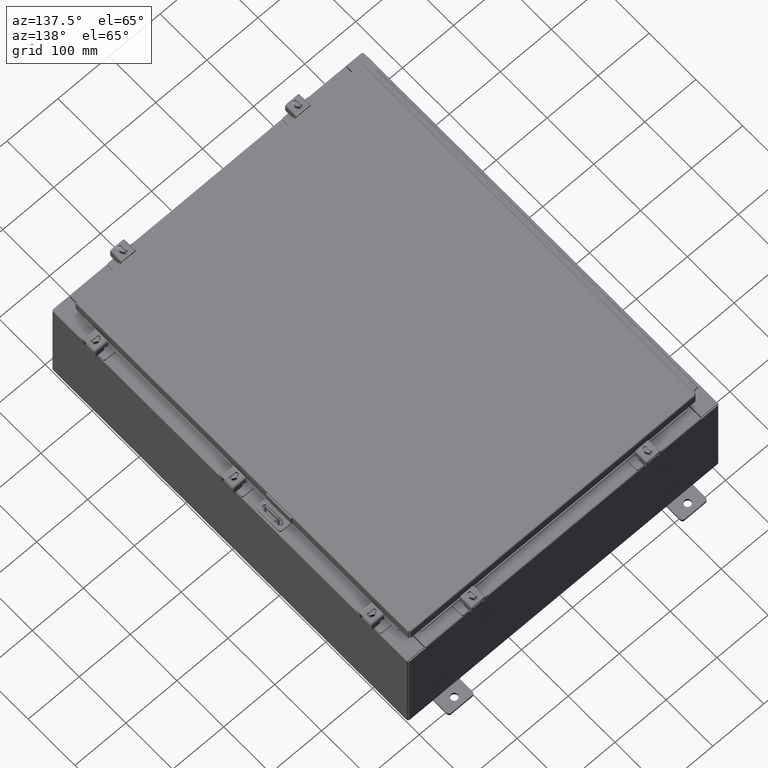
[diagram: clean part render]
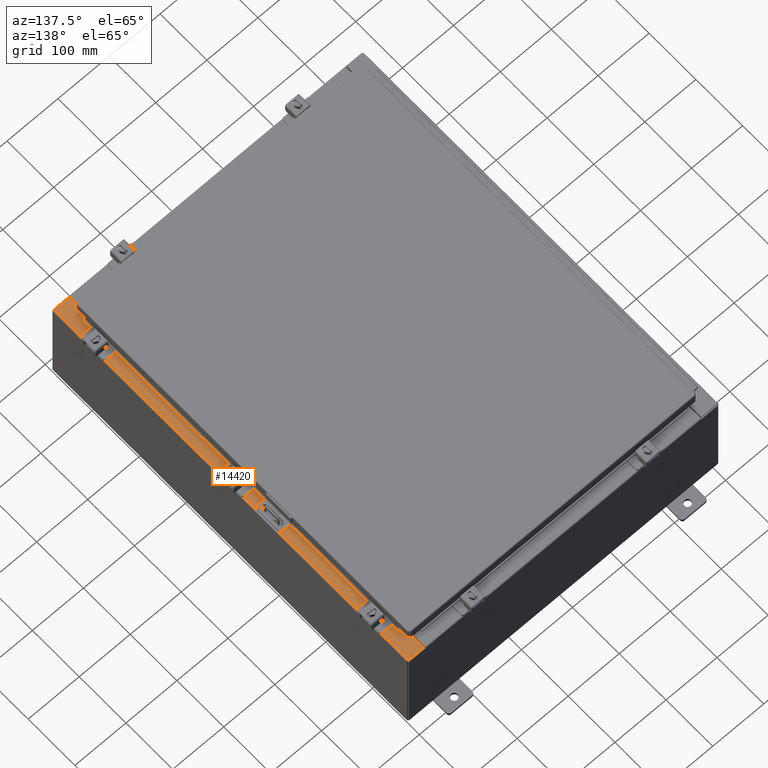
[diagram: same view with one face highlighted and labeled with its STEP entity id]
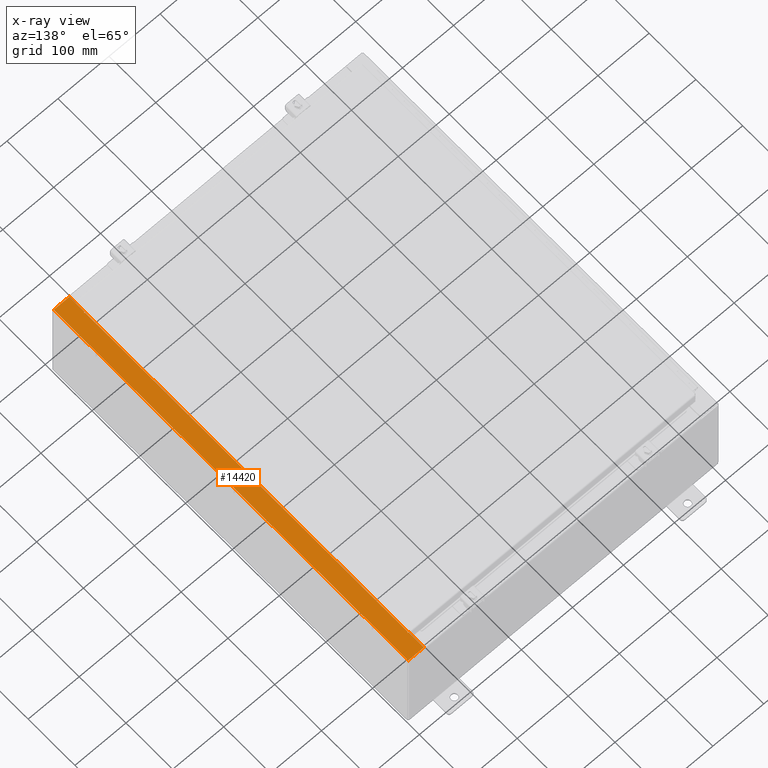
[diagram: x-ray of the same camera — body ghosted, the highlighted face saturated]
A machine part, auxiliary view. The second image highlights one B-rep face of the part: STEP entity #14420.
The next image is the same camera in x-ray: the body ghosted, the highlighted face saturated — about 0% of this face is hidden behind the body in this view.
In plain terms, the highlighted planar face has unit normal (-0, 0, -1).
Its self-contained STEP definition (entity closure, byte-faithful):
#1 = ORIENTED_EDGE ( 'NONE', *, *, #32860, .F. ) ;
#112 = DIRECTION ( 'NONE',  ( 1.000000000000000000, 0.0000000000000000000, 0.0000000000000000000 ) ) ;
#234 = AXIS2_PLACEMENT_3D ( 'NONE', #7017, #27240, #9908 ) ;
#519 = CIRCLE ( 'NONE', #234, 0.01867499999999949400 ) ;
#792 = CIRCLE ( 'NONE', #21893, 0.01867499999999949400 ) ;
#1951 = DIRECTION ( 'NONE',  ( -1.000000000000000000, 0.0000000000000000000, 6.241167087353086200E-015 ) ) ;
#2232 = CARTESIAN_POINT ( 'NONE',  ( 10.75005000000002500, -13.63110000000000400, 7.925300000000007100 ) ) ;
#3093 = LINE ( 'NONE', #4339, #25277 ) ;
#3789 = CARTESIAN_POINT ( 'NONE',  ( 10.69970000000002500, -13.63110000000000400, 7.925300000000007100 ) ) ;
#4053 = LINE ( 'NONE', #4159, #33954 ) ;
#4159 = CARTESIAN_POINT ( 'NONE',  ( 4.972393517341145600E-014, 14.92530000000000000, 7.925300000000073700 ) ) ;
#4238 = CARTESIAN_POINT ( 'NONE',  ( 11.91230000000002500, 14.92530000000000200, 7.925300000000000000 ) ) ;
#4310 = LINE ( 'NONE', #15231, #35115 ) ;
#4339 = CARTESIAN_POINT ( 'NONE',  ( 7.633858978166036100E-014, -14.92530000000002300, 7.925300000000073700 ) ) ;
#4510 = AXIS2_PLACEMENT_3D ( 'NONE', #27850, #19287, #1951 ) ;
#4946 = EDGE_CURVE ( 'NONE', #25352, #17185, #31180, .T. ) ;
#5045 = ORIENTED_EDGE ( 'NONE', *, *, #27064, .F. ) ;
#5274 = DIRECTION ( 'NONE',  ( -0.0000000000000000000, -1.000000000000000000, -0.0000000000000000000 ) ) ;
#6060 = EDGE_CURVE ( 'NONE', #9775, #29844, #3093, .T. ) ;
#6083 = EDGE_LOOP ( 'NONE', ( #33323, #32975, #10405, #5045, #7540, #23286, #22893, #6162, #25951, #1, #23149, #30252 ) ) ;
#6162 = ORIENTED_EDGE ( 'NONE', *, *, #6824, .F. ) ;
#6384 = LINE ( 'NONE', #30147, #28543 ) ;
#6824 = EDGE_CURVE ( 'NONE', #17185, #8973, #792, .T. ) ;
#7017 = CARTESIAN_POINT ( 'NONE',  ( 10.75005000000002500, -13.61242500000000400, 7.925300000000009800 ) ) ;
#7057 = LINE ( 'NONE', #15780, #19757 ) ;
#7382 = CARTESIAN_POINT ( 'NONE',  ( 10.75005000000002500, -13.59375000000000400, 7.925300000000009800 ) ) ;
#7455 = VECTOR ( 'NONE', #22883, 39.37007874015748100 ) ;
#7540 = ORIENTED_EDGE ( 'NONE', *, *, #21871, .T. ) ;
#7951 = CARTESIAN_POINT ( 'NONE',  ( 10.69970000000002500, -14.92530000000000200, 7.925300000000007100 ) ) ;
#8359 = LINE ( 'NONE', #8432, #7455 ) ;
#8432 = CARTESIAN_POINT ( 'NONE',  ( 10.69970000000002500, -13.63110000000000400, 7.925300000000008900 ) ) ;
#8796 = CARTESIAN_POINT ( 'NONE',  ( 11.91230000000002500, -14.92530000000000200, 7.925300000000000000 ) ) ;
#8900 = DIRECTION ( 'NONE',  ( 6.241167087353086200E-015, 0.0000000000000000000, 1.000000000000000000 ) ) ;
#8973 = VERTEX_POINT ( 'NONE', #20753 ) ;
#9094 = VECTOR ( 'NONE', #25545, 39.37007874015748100 ) ;
#9775 = VERTEX_POINT ( 'NONE', #7951 ) ;
#9908 = DIRECTION ( 'NONE',  ( 1.000000000000000000, 0.0000000000000000000, 0.0000000000000000000 ) ) ;
#10405 = ORIENTED_EDGE ( 'NONE', *, *, #6060, .T. ) ;
#11178 = CARTESIAN_POINT ( 'NONE',  ( 10.71270000000002700, 13.59375000000000400, 7.925300000000009800 ) ) ;
#11849 = LINE ( 'NONE', #16912, #20525 ) ;
#11901 = FACE_OUTER_BOUND ( 'NONE', #6083, .T. ) ;
#11985 = VERTEX_POINT ( 'NONE', #15810 ) ;
#13741 = EDGE_CURVE ( 'NONE', #29360, #9775, #7057, .T. ) ;
#13896 = CARTESIAN_POINT ( 'NONE',  ( 10.71270000000002700, -13.59375000000000400, 7.925300000000009800 ) ) ;
#14185 = EDGE_CURVE ( 'NONE', #8973, #11985, #4310, .T. ) ;
#14290 = CARTESIAN_POINT ( 'NONE',  ( 10.71270000000002700, -13.59375000000000400, 7.925300000000009800 ) ) ;
#14420 = ADVANCED_FACE ( 'NONE', ( #11901 ), #36658, .F. ) ;
#14485 = CARTESIAN_POINT ( 'NONE',  ( 10.71270000000002700, 13.59375000000000400, 7.925300000000009800 ) ) ;
#15231 = CARTESIAN_POINT ( 'NONE',  ( 10.75005000000002500, 13.63110000000000400, 7.925300000000009800 ) ) ;
#15780 = CARTESIAN_POINT ( 'NONE',  ( 10.69970000000002500, -2.771691080280524500E-030, 7.925300000000007100 ) ) ;
#15810 = CARTESIAN_POINT ( 'NONE',  ( 10.69970000000002500, 13.63110000000000400, 7.925300000000007100 ) ) ;
#16019 = EDGE_CURVE ( 'NONE', #27004, #27033, #519, .T. ) ;
#16060 = EDGE_CURVE ( 'NONE', #19516, #11985, #6384, .T. ) ;
#16912 = CARTESIAN_POINT ( 'NONE',  ( 11.91230000000002500, -14.92530000000000200, 7.925300000000000000 ) ) ;
#17185 = VERTEX_POINT ( 'NONE', #35441 ) ;
#18716 = DIRECTION ( 'NONE',  ( -1.000000000000000000, 0.0000000000000000000, 6.241167087353087800E-015 ) ) ;
#19287 = DIRECTION ( 'NONE',  ( -6.241167087353086200E-015, 0.0000000000000000000, -1.000000000000000000 ) ) ;
#19516 = VERTEX_POINT ( 'NONE', #28064 ) ;
#19757 = VECTOR ( 'NONE', #33120, 39.37007874015748100 ) ;
#20525 = VECTOR ( 'NONE', #5274, 39.37007874015748100 ) ;
#20753 = CARTESIAN_POINT ( 'NONE',  ( 10.75005000000002500, 13.63110000000000400, 7.925300000000007100 ) ) ;
#21871 = EDGE_CURVE ( 'NONE', #30105, #19516, #4053, .T. ) ;
#21893 = AXIS2_PLACEMENT_3D ( 'NONE', #26254, #8900, #29147 ) ;
#21967 = DIRECTION ( 'NONE',  ( -1.000000000000000000, 0.0000000000000000000, 0.0000000000000000000 ) ) ;
#22883 = DIRECTION ( 'NONE',  ( 1.000000000000000000, 0.0000000000000000000, 2.170286390200049500E-014 ) ) ;
#22893 = ORIENTED_EDGE ( 'NONE', *, *, #14185, .F. ) ;
#23149 = ORIENTED_EDGE ( 'NONE', *, *, #23247, .F. ) ;
#23247 = EDGE_CURVE ( 'NONE', #27033, #35060, #27517, .T. ) ;
#23286 = ORIENTED_EDGE ( 'NONE', *, *, #16060, .T. ) ;
#23511 = VECTOR ( 'NONE', #112, 39.37007874015748100 ) ;
#25277 = VECTOR ( 'NONE', #27450, 39.37007874015748100 ) ;
#25352 = VERTEX_POINT ( 'NONE', #11178 ) ;
#25545 = DIRECTION ( 'NONE',  ( -0.0000000000000000000, 1.000000000000000000, -0.0000000000000000000 ) ) ;
#25951 = ORIENTED_EDGE ( 'NONE', *, *, #4946, .F. ) ;
#26254 = CARTESIAN_POINT ( 'NONE',  ( 10.75005000000002500, 13.61242500000000400, 7.925300000000009800 ) ) ;
#27004 = VERTEX_POINT ( 'NONE', #2232 ) ;
#27033 = VERTEX_POINT ( 'NONE', #37055 ) ;
#27064 = EDGE_CURVE ( 'NONE', #30105, #29844, #11849, .T. ) ;
#27240 = DIRECTION ( 'NONE',  ( 6.241167087353086200E-015, 0.0000000000000000000, 1.000000000000000000 ) ) ;
#27367 = DIRECTION ( 'NONE',  ( -2.590438124695581200E-031, -1.000000000000000000, 1.616735716567471300E-045 ) ) ;
#27450 = DIRECTION ( 'NONE',  ( 1.000000000000000000, 1.783190596386596200E-015, -6.241167087353087800E-015 ) ) ;
#27517 = LINE ( 'NONE', #7382, #35265 ) ;
#27850 = CARTESIAN_POINT ( 'NONE',  ( 4.972393517341145600E-014, 0.0000000000000000000, 7.925300000000073700 ) ) ;
#28064 = CARTESIAN_POINT ( 'NONE',  ( 10.69970000000002500, 14.92530000000000200, 7.925300000000007100 ) ) ;
#28543 = VECTOR ( 'NONE', #27367, 39.37007874015748100 ) ;
#29147 = DIRECTION ( 'NONE',  ( 1.000000000000000000, 0.0000000000000000000, 0.0000000000000000000 ) ) ;
#29360 = VERTEX_POINT ( 'NONE', #3789 ) ;
#29756 = EDGE_CURVE ( 'NONE', #29360, #27004, #8359, .T. ) ;
#29844 = VERTEX_POINT ( 'NONE', #8796 ) ;
#30105 = VERTEX_POINT ( 'NONE', #4238 ) ;
#30147 = CARTESIAN_POINT ( 'NONE',  ( 10.69970000000002500, -2.771691080280524500E-030, 7.925300000000007100 ) ) ;
#30252 = ORIENTED_EDGE ( 'NONE', *, *, #16019, .F. ) ;
#31180 = LINE ( 'NONE', #14485, #23511 ) ;
#32186 = LINE ( 'NONE', #13896, #9094 ) ;
#32860 = EDGE_CURVE ( 'NONE', #35060, #25352, #32186, .T. ) ;
#32975 = ORIENTED_EDGE ( 'NONE', *, *, #13741, .T. ) ;
#33120 = DIRECTION ( 'NONE',  ( -2.590438124695581200E-031, -1.000000000000000000, 1.616735716567471300E-045 ) ) ;
#33323 = ORIENTED_EDGE ( 'NONE', *, *, #29756, .F. ) ;
#33954 = VECTOR ( 'NONE', #18716, 39.37007874015748100 ) ;
#35060 = VERTEX_POINT ( 'NONE', #14290 ) ;
#35115 = VECTOR ( 'NONE', #35512, 39.37007874015748100 ) ;
#35265 = VECTOR ( 'NONE', #21967, 39.37007874015748100 ) ;
#35441 = CARTESIAN_POINT ( 'NONE',  ( 10.75005000000002500, 13.59375000000000400, 7.925300000000007100 ) ) ;
#35512 = DIRECTION ( 'NONE',  ( -1.000000000000000000, 0.0000000000000000000, -2.170286390200049500E-014 ) ) ;
#36658 = PLANE ( 'NONE',  #4510 ) ;
#37055 = CARTESIAN_POINT ( 'NONE',  ( 10.75005000000002500, -13.59375000000000400, 7.925300000000007100 ) ) ;